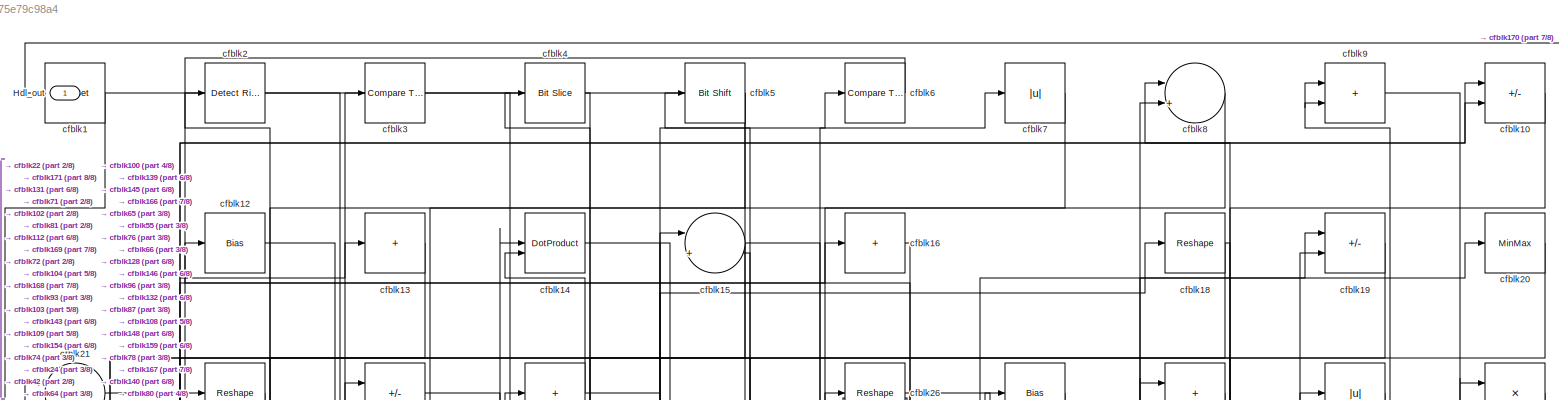
[diagram: root canvas - part 1/8, full width, top band]
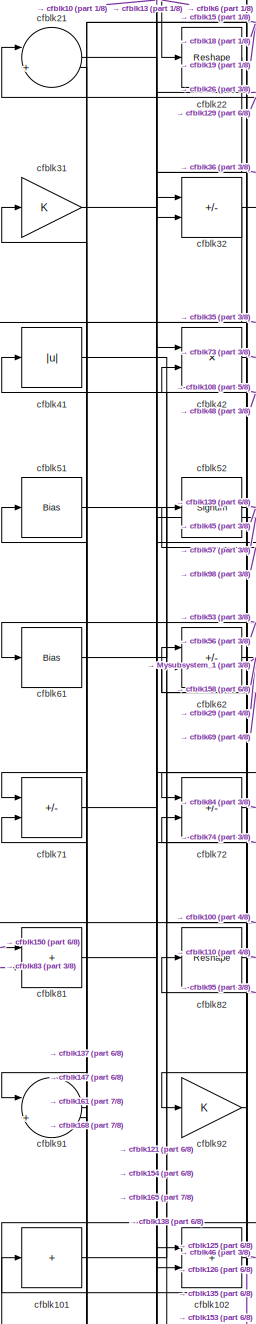
[diagram: root canvas - part 2/8, middle left region]
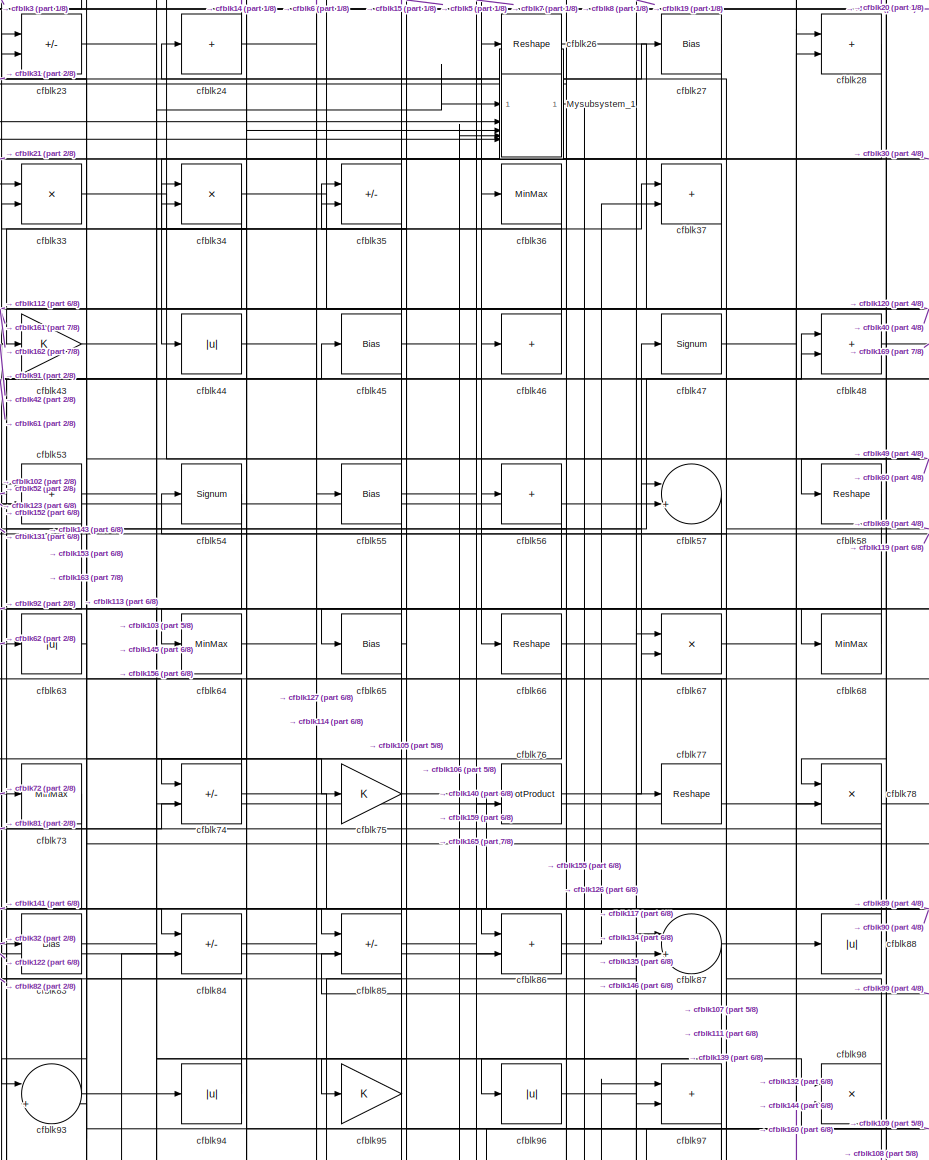
[diagram: root canvas - part 3/8, central region]
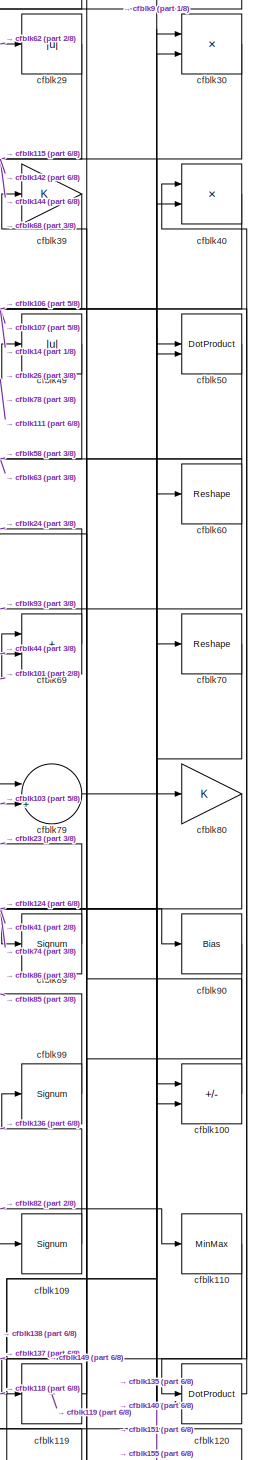
[diagram: root canvas - part 4/8, middle right region]
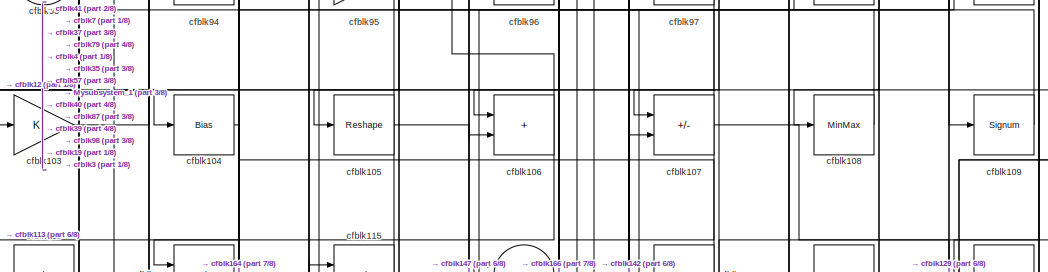
[diagram: root canvas - part 5/8, central region]
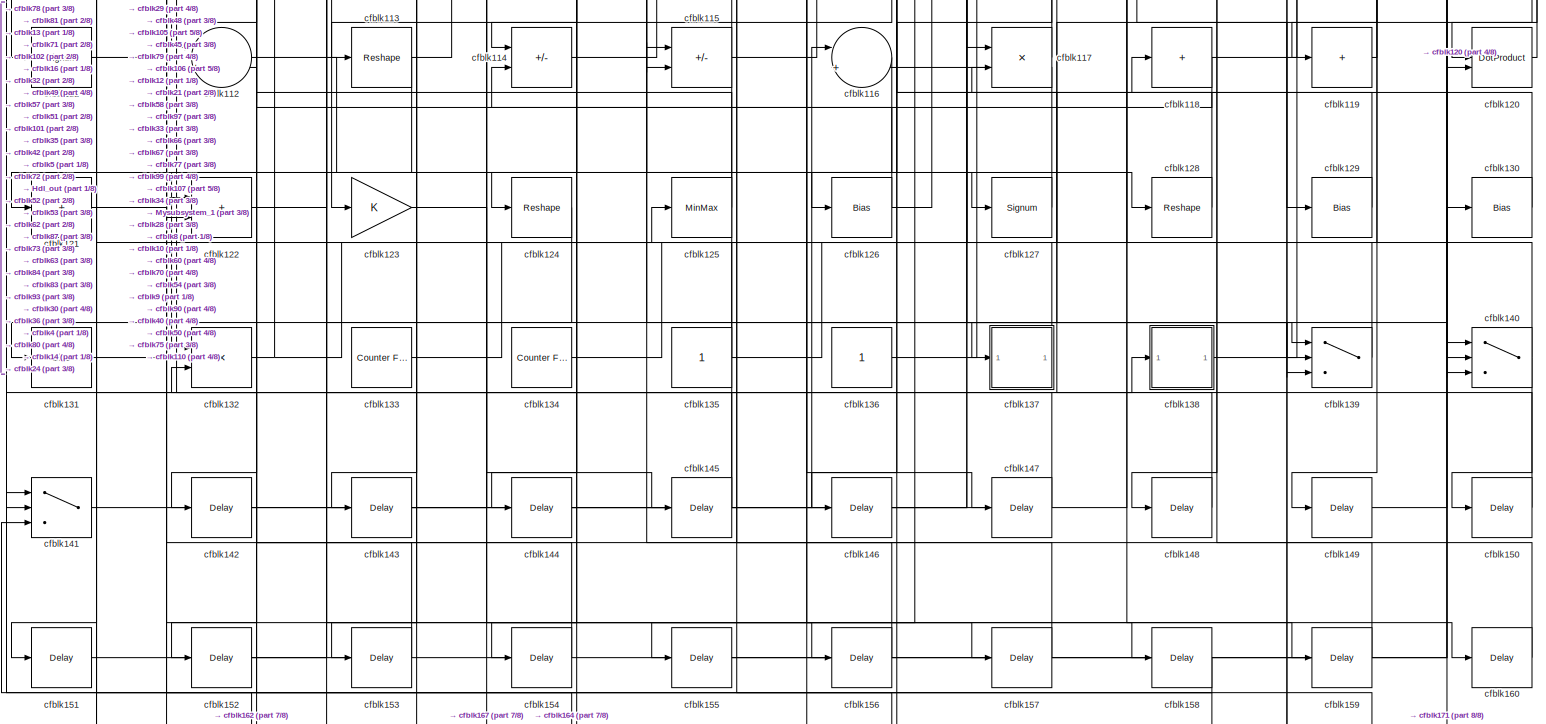
[diagram: root canvas - part 6/8, full width, bottom band]
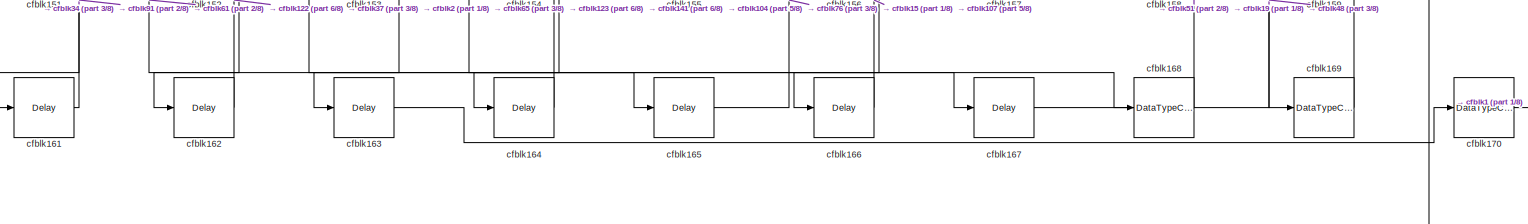
[diagram: root canvas - part 7/8, full width, bottom band]
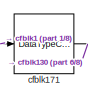
[diagram: root canvas - part 8/8, bottom left region]
MODEL slx_7875e79c98a4
KIND model
CONFIG AbsTol = auto
CONFIG EnableMultiTasking = off
CONFIG FixedStep = auto
CONFIG MaxStep = auto
CONFIG MinStep = auto
CONFIG RelTol = 1e-3
CONFIG SampleTimeConstraint = Unconstrained
CONFIG SolverName = VariableStepAuto
CONFIG StartTime = 0.0
CONFIG StopTime = 10.0
BLOCK [Outport] Hdl_out
  OutDataTypeStr = uint8
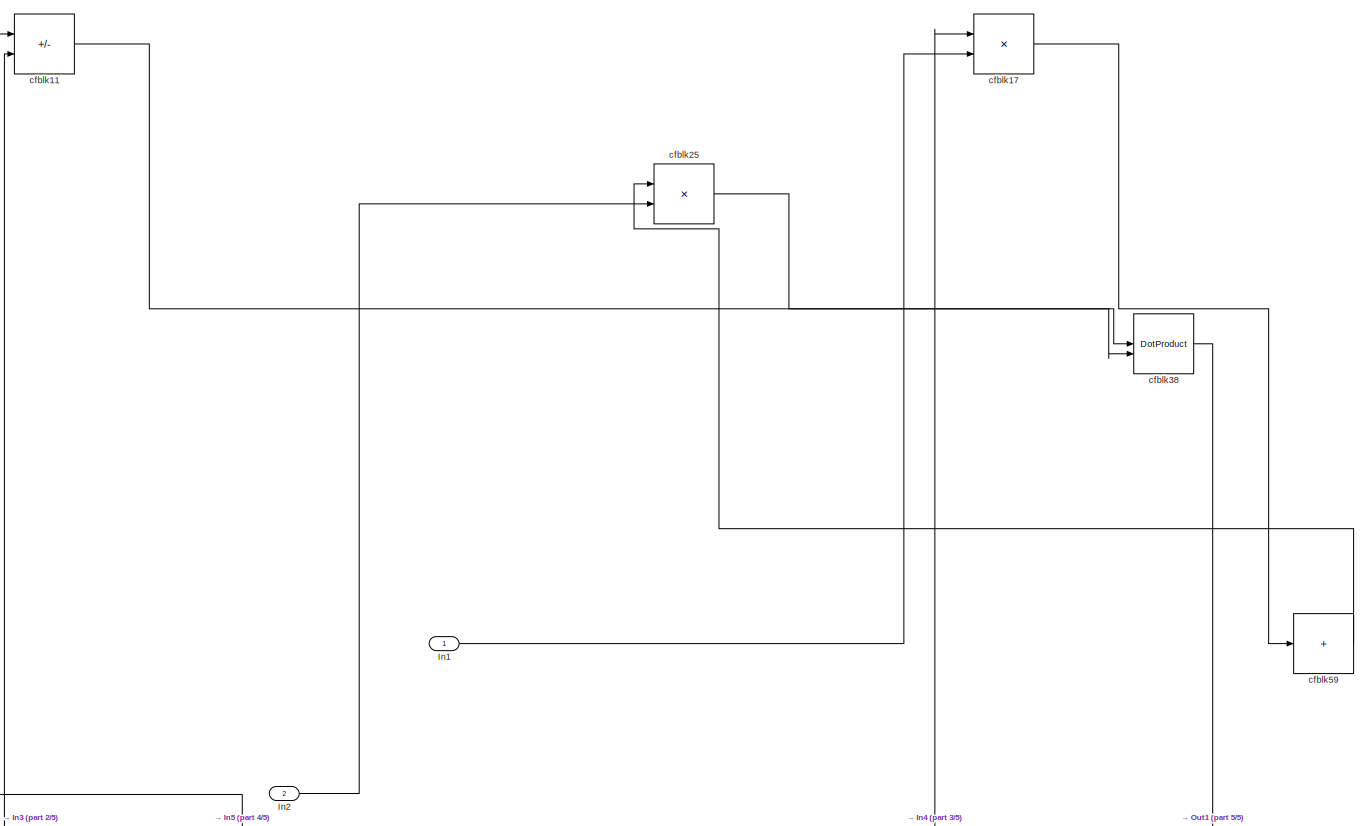
[diagram: Mysubsystem_1 - part 1/5, full width, top band]
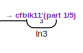
[diagram: Mysubsystem_1 - part 2/5, central region]
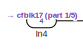
[diagram: Mysubsystem_1 - part 3/5, central region]
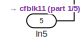
[diagram: Mysubsystem_1 - part 4/5, bottom left region]
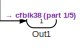
[diagram: Mysubsystem_1 - part 5/5, bottom center region]
BLOCK [SubSystem] Mysubsystem_1
  RTWFcnName = Mysubsystem_1
  RTWFcnNameOpts = User specified
  RTWFileNameOpts = Use function name
  RTWSystemCode = Reusable function
  TreatAsAtomicUnit = on
BLOCK [Inport] Mysubsystem_1/In1
BLOCK [Inport] Mysubsystem_1/In2
  Port = 2
BLOCK [Inport] Mysubsystem_1/In3
  Port = 3
BLOCK [Inport] Mysubsystem_1/In4
  Port = 4
BLOCK [Inport] Mysubsystem_1/In5
  Port = 5
BLOCK [Outport] Mysubsystem_1/Out1
BLOCK [Sum] Mysubsystem_1/cfblk11
  IconShape = rectangular
  Inputs = +-
BLOCK [Product] Mysubsystem_1/cfblk17
  Inputs = */
  RndMeth = Zero
  SaturateOnIntegerOverflow = on
BLOCK [Product] Mysubsystem_1/cfblk25
  Inputs = */
  RndMeth = Zero
  SaturateOnIntegerOverflow = on
BLOCK [DotProduct] Mysubsystem_1/cfblk38
  OutDataTypeStr = Inherit: Inherit via internal rule
BLOCK [Sum] Mysubsystem_1/cfblk59
  IconShape = rectangular
  Inputs = +
BLOCK [Reference] cfblk1  REF=simulink/Logic and Bit
Operations/Bit Set
  LibrarySourceBlock = hdlsllib/Logic and Bit\nOperations/Bit Set
  SourceBlock = simulink/Logic and Bit\nOperations/Bit Set
  SourceType = Bit Set
BLOCK [Sum] cfblk10
  IconShape = rectangular
  Inputs = +-
  OutDataTypeStr = uint8
BLOCK [Sum] cfblk100
  IconShape = rectangular
  Inputs = +-
  OutDataTypeStr = uint8
BLOCK [Sum] cfblk101
  IconShape = rectangular
  Inputs = +
  OutDataTypeStr = uint8
BLOCK [Sum] cfblk102
  IconShape = rectangular
  OutDataTypeStr = uint8
BLOCK [Gain] cfblk103
  OutDataTypeStr = uint8
BLOCK [Bias] cfblk104
  Bias = 0.0
  SaturateOnIntegerOverflow = off
BLOCK [Reshape] cfblk105
BLOCK [Sum] cfblk106
  IconShape = rectangular
  OutDataTypeStr = uint8
BLOCK [Sum] cfblk107
  IconShape = rectangular
  Inputs = +-
  OutDataTypeStr = uint8
BLOCK [MinMax] cfblk108
  OutDataTypeStr = uint8
BLOCK [Signum] cfblk109
BLOCK [MinMax] cfblk110
  OutDataTypeStr = uint8
BLOCK [Signum] cfblk111
BLOCK [Sum] cfblk112
  Inputs = |++
  OutDataTypeStr = uint8
BLOCK [Reshape] cfblk113
BLOCK [Sum] cfblk114
  IconShape = rectangular
  Inputs = +-
  OutDataTypeStr = uint8
BLOCK [Sum] cfblk115
  IconShape = rectangular
  Inputs = +-
  OutDataTypeStr = uint8
BLOCK [Sum] cfblk116
  Inputs = |++
  OutDataTypeStr = uint8
BLOCK [Product] cfblk117
  Inputs = */
  OutDataTypeStr = uint8
  RndMeth = Zero
  SaturateOnIntegerOverflow = on
BLOCK [Sum] cfblk118
  IconShape = rectangular
  Inputs = +
  OutDataTypeStr = uint8
BLOCK [Sum] cfblk119
  IconShape = rectangular
  Inputs = +
  OutDataTypeStr = uint8
BLOCK [Bias] cfblk12
  Bias = 0.0
  SaturateOnIntegerOverflow = off
BLOCK [DotProduct] cfblk120
  OutDataTypeStr = uint8
BLOCK [Sum] cfblk121
  IconShape = rectangular
  Inputs = +
  OutDataTypeStr = uint8
BLOCK [Sum] cfblk122
  IconShape = rectangular
  OutDataTypeStr = uint8
BLOCK [Gain] cfblk123
  OutDataTypeStr = uint8
BLOCK [Reshape] cfblk124
BLOCK [MinMax] cfblk125
  OutDataTypeStr = uint8
BLOCK [Bias] cfblk126
  Bias = 0.0
  SaturateOnIntegerOverflow = off
BLOCK [Signum] cfblk127
BLOCK [Reshape] cfblk128
BLOCK [Bias] cfblk129
  Bias = 0.0
  SaturateOnIntegerOverflow = off
BLOCK [Sum] cfblk13
  IconShape = rectangular
  Inputs = +
  OutDataTypeStr = uint8
BLOCK [Bias] cfblk130
  Bias = 0.0
  SaturateOnIntegerOverflow = off
BLOCK [Bias] cfblk131
  Bias = 0.0
  SaturateOnIntegerOverflow = off
BLOCK [Product] cfblk132
  Inputs = */
  OutDataTypeStr = uint8
  RndMeth = Zero
  SaturateOnIntegerOverflow = on
BLOCK [Reference] cfblk133  REF=hdlsllib/Sources/Counter
Free-Running
  SourceBlock = hdlsllib/Sources/Counter\nFree-Running
  SourceType = Counter Free-Running
BLOCK [Reference] cfblk134  REF=hdlsllib/Sources/Counter
Free-Running
  SourceBlock = hdlsllib/Sources/Counter\nFree-Running
  SourceType = Counter Free-Running
BLOCK [Constant] cfblk135
  OutDataTypeStr = uint8
  SampleTime = -1
BLOCK [Constant] cfblk136
  OutDataTypeStr = uint8
  SampleTime = -1
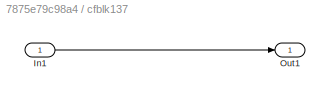
BLOCK [SubSystem] cfblk137
  LibrarySourceBlock = hdlsllib/Ports &\nSubsystems/Subsystem
BLOCK [Inport] cfblk137/In1
BLOCK [Outport] cfblk137/Out1
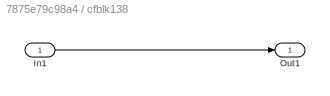
BLOCK [SubSystem] cfblk138
  LibrarySourceBlock = hdlsllib/Ports &\nSubsystems/Subsystem
BLOCK [Inport] cfblk138/In1
BLOCK [Outport] cfblk138/Out1
BLOCK [Switch] cfblk139
  InputSameDT = off
  OutDataTypeStr = uint8
  SaturateOnIntegerOverflow = off
BLOCK [DotProduct] cfblk14
  OutDataTypeStr = uint8
BLOCK [Switch] cfblk140
  InputSameDT = off
  OutDataTypeStr = uint8
  SaturateOnIntegerOverflow = off
BLOCK [Switch] cfblk141
  InputSameDT = off
  OutDataTypeStr = uint8
  SaturateOnIntegerOverflow = off
BLOCK [Delay] cfblk142
  InputPortMap = u0
  SampleTime = 1
BLOCK [Delay] cfblk143
  InputPortMap = u0
  SampleTime = 1
BLOCK [Delay] cfblk144
  InputPortMap = u0
  SampleTime = 1
BLOCK [Delay] cfblk145
  InputPortMap = u0
  SampleTime = 1
BLOCK [Delay] cfblk146
  InputPortMap = u0
  SampleTime = 1
BLOCK [Delay] cfblk147
  InputPortMap = u0
  SampleTime = 1
BLOCK [Delay] cfblk148
  InputPortMap = u0
  SampleTime = 1
BLOCK [Delay] cfblk149
  InputPortMap = u0
  SampleTime = 1
BLOCK [Sum] cfblk15
  Inputs = |++
  OutDataTypeStr = uint8
BLOCK [Delay] cfblk150
  InputPortMap = u0
  SampleTime = 1
BLOCK [Delay] cfblk151
  InputPortMap = u0
  SampleTime = 1
BLOCK [Delay] cfblk152
  InputPortMap = u0
  SampleTime = 1
BLOCK [Delay] cfblk153
  InputPortMap = u0
  SampleTime = 1
BLOCK [Delay] cfblk154
  InputPortMap = u0
  SampleTime = 1
BLOCK [Delay] cfblk155
  InputPortMap = u0
  SampleTime = 1
BLOCK [Delay] cfblk156
  InputPortMap = u0
  SampleTime = 1
BLOCK [Delay] cfblk157
  InputPortMap = u0
  SampleTime = 1
BLOCK [Delay] cfblk158
  InputPortMap = u0
  SampleTime = 1
BLOCK [Delay] cfblk159
  InputPortMap = u0
  SampleTime = 1
BLOCK [Sum] cfblk16
  IconShape = rectangular
  Inputs = +
  OutDataTypeStr = uint8
BLOCK [Delay] cfblk160
  InputPortMap = u0
  SampleTime = 1
BLOCK [Delay] cfblk161
  InputPortMap = u0
  SampleTime = 1
BLOCK [Delay] cfblk162
  InputPortMap = u0
  SampleTime = 1
BLOCK [Delay] cfblk163
  InputPortMap = u0
  SampleTime = 1
BLOCK [Delay] cfblk164
  InputPortMap = u0
  SampleTime = 1
BLOCK [Delay] cfblk165
  InputPortMap = u0
  SampleTime = 1
BLOCK [Delay] cfblk166
  InputPortMap = u0
  SampleTime = 1
BLOCK [Delay] cfblk167
  InputPortMap = u0
  SampleTime = 1
BLOCK [DataTypeConversion] cfblk168
  OutDataTypeStr = uint8
  RndMeth = Floor
  SaturateOnIntegerOverflow = off
BLOCK [DataTypeConversion] cfblk169
  OutDataTypeStr = uint8
  RndMeth = Floor
  SaturateOnIntegerOverflow = off
BLOCK [DataTypeConversion] cfblk170
  OutDataTypeStr = uint8
  RndMeth = Floor
  SaturateOnIntegerOverflow = off
BLOCK [DataTypeConversion] cfblk171
  OutDataTypeStr = uint8
  RndMeth = Floor
  SaturateOnIntegerOverflow = off
BLOCK [Reshape] cfblk18
BLOCK [Sum] cfblk19
  IconShape = rectangular
  Inputs = +-
  OutDataTypeStr = uint8
BLOCK [Reference] cfblk2  REF=hdlsllib/Logic and Bit
Operations/Detect Rise
Nonnegative
  SourceBlock = hdlsllib/Logic and Bit\nOperations/Detect Rise\nNonnegative
  SourceType = Detect Rise Nonnegative
BLOCK [MinMax] cfblk20
  OutDataTypeStr = uint8
BLOCK [Sum] cfblk21
  Inputs = |++
  OutDataTypeStr = uint8
BLOCK [Reshape] cfblk22
BLOCK [Sum] cfblk23
  IconShape = rectangular
  Inputs = +-
  OutDataTypeStr = uint8
BLOCK [Sum] cfblk24
  IconShape = rectangular
  Inputs = +
  OutDataTypeStr = uint8
BLOCK [Reshape] cfblk26
BLOCK [Bias] cfblk27
  Bias = 0.0
  SaturateOnIntegerOverflow = off
BLOCK [Sum] cfblk28
  IconShape = rectangular
  OutDataTypeStr = uint8
BLOCK [Abs] cfblk29
  OutDataTypeStr = uint8
  SaturateOnIntegerOverflow = off
BLOCK [Reference] cfblk3  REF=hdlsllib/Logic and Bit
Operations/Compare
To Constant
  SourceBlock = hdlsllib/Logic and Bit\nOperations/Compare\nTo Constant
  SourceType = Compare To Constant
BLOCK [Product] cfblk30
  Inputs = */
  OutDataTypeStr = uint8
  RndMeth = Zero
  SaturateOnIntegerOverflow = on
BLOCK [Gain] cfblk31
  OutDataTypeStr = uint8
BLOCK [Sum] cfblk32
  IconShape = rectangular
  Inputs = +-
  OutDataTypeStr = uint8
BLOCK [Product] cfblk33
  Inputs = */
  OutDataTypeStr = uint8
  RndMeth = Zero
  SaturateOnIntegerOverflow = on
BLOCK [Product] cfblk34
  Inputs = */
  OutDataTypeStr = uint8
  RndMeth = Zero
  SaturateOnIntegerOverflow = on
BLOCK [Sum] cfblk35
  IconShape = rectangular
  Inputs = +-
  OutDataTypeStr = uint8
BLOCK [MinMax] cfblk36
  OutDataTypeStr = uint8
BLOCK [Sum] cfblk37
  IconShape = rectangular
  OutDataTypeStr = uint8
BLOCK [Gain] cfblk39
  OutDataTypeStr = uint8
BLOCK [Reference] cfblk4  REF=hdlsllib/Logic and Bit
Operations/Bit Slice
  SourceBlock = hdlsllib/Logic and Bit\nOperations/Bit Slice
  SourceType = Bit Slice
BLOCK [Product] cfblk40
  Inputs = */
  OutDataTypeStr = uint8
  RndMeth = Zero
  SaturateOnIntegerOverflow = on
BLOCK [Abs] cfblk41
  OutDataTypeStr = uint8
  SaturateOnIntegerOverflow = off
BLOCK [Product] cfblk42
  Inputs = */
  OutDataTypeStr = uint8
  RndMeth = Zero
  SaturateOnIntegerOverflow = on
BLOCK [Gain] cfblk43
  OutDataTypeStr = uint8
BLOCK [Abs] cfblk44
  OutDataTypeStr = uint8
  SaturateOnIntegerOverflow = off
BLOCK [Bias] cfblk45
  Bias = 0.0
  SaturateOnIntegerOverflow = off
BLOCK [Sum] cfblk46
  IconShape = rectangular
  Inputs = +
  OutDataTypeStr = uint8
BLOCK [Signum] cfblk47
BLOCK [Sum] cfblk48
  IconShape = rectangular
  OutDataTypeStr = uint8
BLOCK [Abs] cfblk49
  OutDataTypeStr = uint8
  SaturateOnIntegerOverflow = off
BLOCK [Reference] cfblk5  REF=hdlsllib/Logic and Bit
Operations/Bit Shift
  SourceBlock = hdlsllib/Logic and Bit\nOperations/Bit Shift
  SourceType = Bit Shift
BLOCK [DotProduct] cfblk50
  OutDataTypeStr = uint8
BLOCK [Bias] cfblk51
  Bias = 0.0
  SaturateOnIntegerOverflow = off
BLOCK [Signum] cfblk52
BLOCK [Sum] cfblk53
  IconShape = rectangular
  OutDataTypeStr = uint8
BLOCK [Signum] cfblk54
BLOCK [Bias] cfblk55
  Bias = 0.0
  SaturateOnIntegerOverflow = off
BLOCK [Sum] cfblk56
  IconShape = rectangular
  Inputs = +
  OutDataTypeStr = uint8
BLOCK [Sum] cfblk57
  Inputs = |++
  OutDataTypeStr = uint8
BLOCK [Reshape] cfblk58
BLOCK [Reference] cfblk6  REF=hdlsllib/Logic and Bit
Operations/Compare
To Constant
  SourceBlock = hdlsllib/Logic and Bit\nOperations/Compare\nTo Constant
  SourceType = Compare To Constant
BLOCK [Reshape] cfblk60
BLOCK [Bias] cfblk61
  Bias = 0.0
  SaturateOnIntegerOverflow = off
BLOCK [Sum] cfblk62
  IconShape = rectangular
  Inputs = +-
  OutDataTypeStr = uint8
BLOCK [Abs] cfblk63
  OutDataTypeStr = uint8
  SaturateOnIntegerOverflow = off
BLOCK [MinMax] cfblk64
  OutDataTypeStr = uint8
BLOCK [Bias] cfblk65
  Bias = 0.0
  SaturateOnIntegerOverflow = off
BLOCK [Reshape] cfblk66
BLOCK [Product] cfblk67
  Inputs = */
  OutDataTypeStr = uint8
  RndMeth = Zero
  SaturateOnIntegerOverflow = on
BLOCK [MinMax] cfblk68
  OutDataTypeStr = uint8
BLOCK [Sum] cfblk69
  IconShape = rectangular
  OutDataTypeStr = uint8
BLOCK [Abs] cfblk7
  OutDataTypeStr = uint8
  SaturateOnIntegerOverflow = off
BLOCK [Reshape] cfblk70
BLOCK [Sum] cfblk71
  IconShape = rectangular
  Inputs = +-
  OutDataTypeStr = uint8
BLOCK [Sum] cfblk72
  IconShape = rectangular
  Inputs = +-
  OutDataTypeStr = uint8
BLOCK [MinMax] cfblk73
  OutDataTypeStr = uint8
BLOCK [Sum] cfblk74
  IconShape = rectangular
  Inputs = +-
  OutDataTypeStr = uint8
BLOCK [Gain] cfblk75
  OutDataTypeStr = uint8
BLOCK [DotProduct] cfblk76
  OutDataTypeStr = uint8
BLOCK [Reshape] cfblk77
BLOCK [Product] cfblk78
  Inputs = */
  OutDataTypeStr = uint8
  RndMeth = Zero
  SaturateOnIntegerOverflow = on
BLOCK [Sum] cfblk79
  Inputs = |++
  OutDataTypeStr = uint8
BLOCK [Sum] cfblk8
  Inputs = |++
  OutDataTypeStr = uint8
BLOCK [Gain] cfblk80
  OutDataTypeStr = uint8
BLOCK [Sum] cfblk81
  IconShape = rectangular
  OutDataTypeStr = uint8
BLOCK [Reshape] cfblk82
BLOCK [Bias] cfblk83
  Bias = 0.0
  SaturateOnIntegerOverflow = off
BLOCK [Sum] cfblk84
  IconShape = rectangular
  Inputs = +-
  OutDataTypeStr = uint8
BLOCK [Sum] cfblk85
  IconShape = rectangular
  Inputs = +-
  OutDataTypeStr = uint8
BLOCK [Sum] cfblk86
  IconShape = rectangular
  OutDataTypeStr = uint8
BLOCK [Sum] cfblk87
  Inputs = |++
  OutDataTypeStr = uint8
BLOCK [Abs] cfblk88
  OutDataTypeStr = uint8
  SaturateOnIntegerOverflow = off
BLOCK [Signum] cfblk89
BLOCK [Sum] cfblk9
  IconShape = rectangular
  OutDataTypeStr = uint8
BLOCK [Bias] cfblk90
  Bias = 0.0
  SaturateOnIntegerOverflow = off
BLOCK [Sum] cfblk91
  Inputs = |++
  OutDataTypeStr = uint8
BLOCK [Gain] cfblk92
  OutDataTypeStr = uint8
BLOCK [Sum] cfblk93
  Inputs = |++
  OutDataTypeStr = uint8
BLOCK [Abs] cfblk94
  OutDataTypeStr = uint8
  SaturateOnIntegerOverflow = off
BLOCK [Gain] cfblk95
  OutDataTypeStr = uint8
BLOCK [Abs] cfblk96
  OutDataTypeStr = uint8
  SaturateOnIntegerOverflow = off
BLOCK [Sum] cfblk97
  IconShape = rectangular
  OutDataTypeStr = uint8
BLOCK [Product] cfblk98
  Inputs = */
  OutDataTypeStr = uint8
  RndMeth = Zero
  SaturateOnIntegerOverflow = on
BLOCK [Signum] cfblk99
LINE Mysubsystem_1/In1:1 -> Mysubsystem_1/cfblk17:2
LINE Mysubsystem_1/In2:1 -> Mysubsystem_1/cfblk25:2
LINE Mysubsystem_1/In3:1 -> Mysubsystem_1/cfblk11:2
LINE Mysubsystem_1/In4:1 -> Mysubsystem_1/cfblk17:1
LINE Mysubsystem_1/In5:1 -> Mysubsystem_1/cfblk11:1
LINE Mysubsystem_1/cfblk11:1 -> Mysubsystem_1/cfblk38:1
LINE Mysubsystem_1/cfblk17:1 -> Mysubsystem_1/cfblk59:1
LINE Mysubsystem_1/cfblk25:1 -> Mysubsystem_1/cfblk38:2
LINE Mysubsystem_1/cfblk38:1 -> Mysubsystem_1/Out1:1
LINE Mysubsystem_1/cfblk59:1 -> Mysubsystem_1/cfblk25:1
LINE Mysubsystem_1:1 -> cfblk155:1
LINE cfblk100:1 -> cfblk39:1
LINE cfblk101:1 -> cfblk69:1
LINE cfblk102:1 -> cfblk46:1
NET cfblk103:1 -> cfblk37:1, cfblk79:2
LINE cfblk104:1 -> cfblk164:1
LINE cfblk105:1 -> cfblk147:1
NET cfblk106:1 -> Mysubsystem_1:4, cfblk113:1
NET cfblk107:1 -> cfblk129:1, cfblk166:1, cfblk35:1
NET cfblk108:1 -> cfblk41:1, cfblk98:2
NET cfblk109:1 -> Mysubsystem_1:3, cfblk4:1
LINE cfblk10:1 -> cfblk148:1
LINE cfblk110:1 -> cfblk137:1
NET cfblk111:1 -> cfblk157:1, cfblk49:1
LINE cfblk112:1 -> cfblk128:1
NET cfblk113:1 -> cfblk121:1, cfblk84:2
LINE cfblk114:1 -> cfblk48:2
LINE cfblk115:1 -> cfblk79:1
LINE cfblk116:1 -> cfblk132:1
LINE cfblk117:1 -> cfblk34:2
NET cfblk118:1 -> cfblk114:2, cfblk60:1
LINE cfblk119:1 -> cfblk54:1
LINE cfblk120:1 -> cfblk40:1
LINE cfblk121:1 -> cfblk102:1
LINE cfblk122:1 -> cfblk87:2
LINE cfblk123:1 -> cfblk167:1
NET cfblk124:1 -> cfblk151:1, cfblk152:1
LINE cfblk125:1 -> cfblk101:1
NET cfblk126:1 -> cfblk42:2, cfblk97:1
LINE cfblk127:1 -> cfblk116:2
LINE cfblk128:1 -> cfblk12:1
LINE cfblk129:1 -> cfblk21:1
LINE cfblk12:1 -> cfblk104:1
LINE cfblk130:1 -> cfblk118:1
NET cfblk131:1 -> cfblk16:1, cfblk57:1
NET cfblk132:1 -> Mysubsystem_1:5, cfblk8:2
LINE cfblk133:1 -> cfblk125:1
LINE cfblk134:1 -> cfblk67:1
NET cfblk135:1 -> cfblk50:1, cfblk72:2, cfblk77:1
LINE cfblk136:1 -> cfblk99:1
LINE cfblk137/In1:1 -> cfblk137/Out1:1
LINE cfblk137:1 -> cfblk21:2
LINE cfblk138/In1:1 -> cfblk138/Out1:1
LINE cfblk138:1 -> cfblk70:1
LINE cfblk139:1 -> cfblk67:2
LINE cfblk13:1 -> cfblk131:1
NET cfblk140:1 -> cfblk150:1, cfblk9:1, cfblk9:2
LINE cfblk141:1 -> cfblk116:1
LINE cfblk142:1 -> cfblk107:2
LINE cfblk143:1 -> cfblk14:1
LINE cfblk144:1 -> cfblk28:2
NET cfblk145:1 -> Hdl_out:1, cfblk33:1
LINE cfblk146:1 -> cfblk87:1
LINE cfblk147:1 -> cfblk71:2
LINE cfblk148:1 -> cfblk117:2
LINE cfblk149:1 -> cfblk120:2
NET cfblk14:1 -> cfblk100:1, cfblk139:3
LINE cfblk150:1 -> cfblk81:1
LINE cfblk151:1 -> cfblk30:2
LINE cfblk152:1 -> cfblk53:2
LINE cfblk153:1 -> cfblk62:2
LINE cfblk154:1 -> cfblk32:1
LINE cfblk155:1 -> cfblk40:2
LINE cfblk156:1 -> cfblk35:2
LINE cfblk157:1 -> cfblk115:1
LINE cfblk158:1 -> cfblk141:3
LINE cfblk159:1 -> cfblk8:1
NET cfblk15:1 -> cfblk72:1, cfblk76:1
LINE cfblk160:1 -> cfblk132:2
LINE cfblk161:1 -> cfblk91:2
LINE cfblk162:1 -> cfblk122:1
LINE cfblk163:1 -> cfblk170:1
LINE cfblk164:1 -> cfblk141:1
LINE cfblk165:1 -> cfblk76:2
LINE cfblk166:1 -> cfblk15:2
LINE cfblk167:1 -> cfblk19:2
LINE cfblk168:1 -> cfblk51:1
LINE cfblk169:1 -> cfblk2:1
LINE cfblk16:1 -> cfblk146:1
LINE cfblk170:1 -> cfblk1:1
LINE cfblk171:1 -> cfblk130:1
NET cfblk18:1 -> cfblk102:2, cfblk78:1
NET cfblk19:1 -> cfblk108:1, cfblk71:1
LINE cfblk1:1 -> cfblk171:1
NET cfblk20:1 -> cfblk65:1, cfblk74:1
LINE cfblk21:1 -> cfblk36:1
LINE cfblk22:1 -> cfblk32:2
NET cfblk23:1 -> cfblk85:1, cfblk97:2
NET cfblk24:1 -> cfblk127:1, cfblk14:2, cfblk18:1, cfblk89:1
LINE cfblk26:1 -> cfblk120:1
LINE cfblk27:1 -> cfblk95:1
LINE cfblk28:1 -> cfblk44:1
NET cfblk29:1 -> cfblk115:2, cfblk142:1
LINE cfblk2:1 -> cfblk168:1
NET cfblk30:1 -> cfblk144:1, cfblk50:2, cfblk68:1
LINE cfblk31:1 -> cfblk26:1
NET cfblk32:1 -> cfblk81:2, cfblk83:1
NET cfblk33:1 -> cfblk117:1, cfblk75:1
NET cfblk34:1 -> cfblk161:1, cfblk88:1
NET cfblk35:1 -> cfblk112:2, cfblk91:1
LINE cfblk36:1 -> cfblk114:1
LINE cfblk37:1 -> cfblk162:1
LINE cfblk39:1 -> cfblk107:1
LINE cfblk3:1 -> cfblk109:1
NET cfblk40:1 -> cfblk106:2, cfblk78:2, cfblk86:2
LINE cfblk41:1 -> cfblk100:2
NET cfblk42:1 -> cfblk15:1, cfblk73:1
LINE cfblk43:1 -> cfblk94:1
LINE cfblk44:1 -> cfblk69:2
NET cfblk45:1 -> cfblk140:3, cfblk159:1
LINE cfblk46:1 -> cfblk33:2
LINE cfblk47:1 -> cfblk28:1
LINE cfblk48:1 -> cfblk169:1
LINE cfblk49:1 -> cfblk63:1
LINE cfblk4:1 -> cfblk154:1
LINE cfblk50:1 -> cfblk119:1
LINE cfblk51:1 -> cfblk138:1
NET cfblk52:1 -> cfblk139:2, cfblk45:1
NET cfblk53:1 -> Mysubsystem_1:1, cfblk92:1, cfblk98:1
LINE cfblk54:1 -> cfblk143:1
LINE cfblk55:1 -> cfblk7:1
LINE cfblk56:1 -> cfblk61:1
LINE cfblk57:1 -> cfblk105:1
NET cfblk58:1 -> cfblk126:1, cfblk96:1
LINE cfblk5:1 -> cfblk112:1
NET cfblk60:1 -> cfblk58:1, cfblk93:1
NET cfblk61:1 -> cfblk165:1, cfblk48:1
NET cfblk62:1 -> Mysubsystem_1:2, cfblk158:1, cfblk29:1
NET cfblk63:1 -> cfblk153:1, cfblk93:2
LINE cfblk64:1 -> cfblk6:1
NET cfblk65:1 -> cfblk163:1, cfblk5:1
NET cfblk66:1 -> cfblk122:2, cfblk139:1
LINE cfblk67:1 -> cfblk160:1
LINE cfblk68:1 -> cfblk64:1
LINE cfblk69:1 -> cfblk24:1
LINE cfblk6:1 -> cfblk22:1
LINE cfblk70:1 -> cfblk140:2
NET cfblk71:1 -> cfblk10:2, cfblk42:1
LINE cfblk72:1 -> cfblk84:1
LINE cfblk73:1 -> cfblk123:1
NET cfblk74:1 -> cfblk43:1, cfblk90:1
LINE cfblk75:1 -> cfblk140:1
LINE cfblk76:1 -> cfblk47:1
LINE cfblk77:1 -> cfblk34:1
LINE cfblk78:1 -> cfblk141:2
LINE cfblk79:1 -> cfblk30:1
LINE cfblk7:1 -> cfblk103:1
LINE cfblk80:1 -> cfblk124:1
NET cfblk81:1 -> cfblk10:1, cfblk13:1, cfblk57:2, cfblk74:2
LINE cfblk82:1 -> cfblk110:1
LINE cfblk83:1 -> cfblk145:1
LINE cfblk84:1 -> cfblk55:1
LINE cfblk85:1 -> cfblk27:1
NET cfblk86:1 -> cfblk37:2, cfblk56:1
NET cfblk87:1 -> cfblk106:1, cfblk20:1
LINE cfblk88:1 -> cfblk53:1
NET cfblk89:1 -> cfblk23:2, cfblk86:1
LINE cfblk8:1 -> cfblk66:1
LINE cfblk90:1 -> cfblk149:1
LINE cfblk91:1 -> cfblk31:1
LINE cfblk92:1 -> cfblk62:1
NET cfblk93:1 -> cfblk156:1, cfblk3:1
LINE cfblk94:1 -> cfblk23:1
LINE cfblk95:1 -> cfblk82:1
LINE cfblk96:1 -> cfblk19:1
LINE cfblk97:1 -> cfblk111:1
LINE cfblk98:1 -> cfblk52:1
LINE cfblk99:1 -> cfblk85:2
LINE cfblk9:1 -> cfblk80:1
note: NET lines group one-source signal fan-out (src -> all destinations, sorted); 1:1 wires keep LINE
